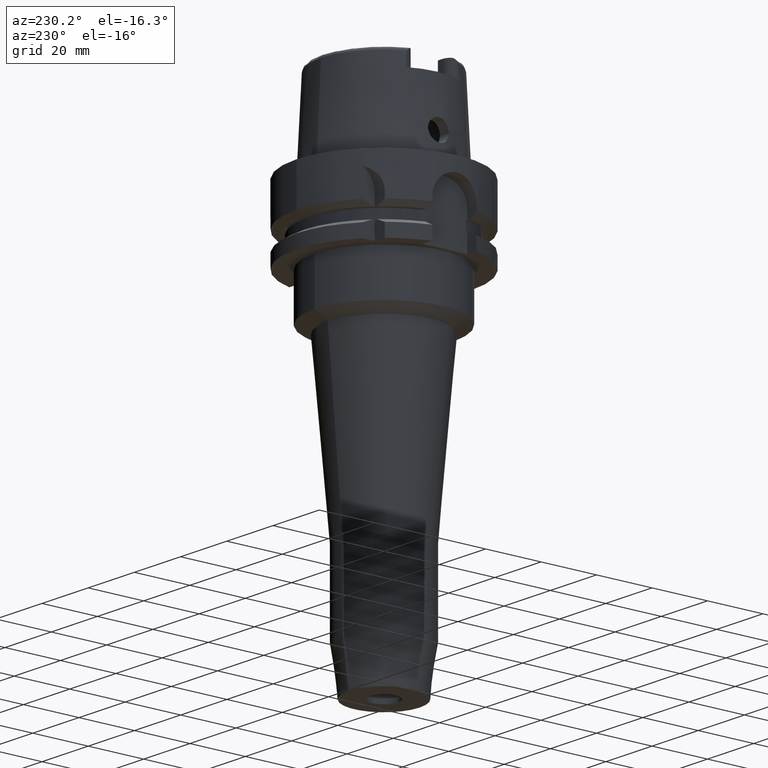
[diagram: clean part render]
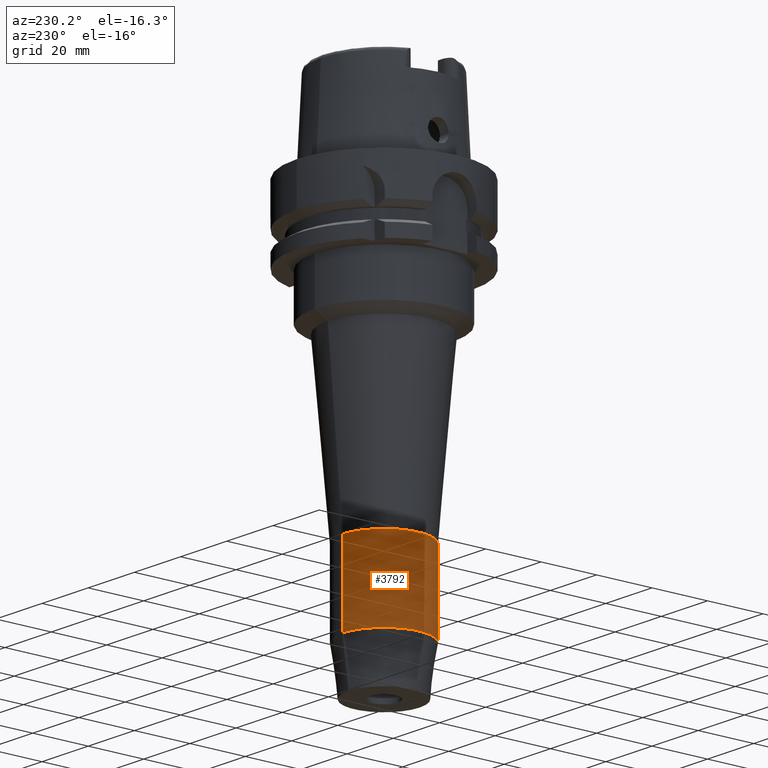
[diagram: same view with one face highlighted and labeled with its STEP entity id]
A machine part, auxiliary view. The second image highlights one B-rep face of the part: STEP entity #3792.
In plain terms, the highlighted cylindrical surface (partial cylindrical patch) has radius 15 mm, axis along (0, 0, 1).
Its self-contained STEP definition (entity closure, byte-faithful):
#1668=CARTESIAN_POINT('',(0.E0,0.E0,-1.05087E2));
#1669=DIRECTION('',(0.E0,0.E0,-1.E0));
#1670=DIRECTION('',(0.E0,-1.E0,0.E0));
#1671=AXIS2_PLACEMENT_3D('',#1668,#1669,#1670);
#1699=DIRECTION('',(0.E0,7.087271059887E-14,-1.E0));
#1700=VECTOR('',#1699,2.854794776410E1);
#1701=CARTESIAN_POINT('',(0.E0,1.5E1,-1.05087E2));
#1702=LINE('',#1701,#1700);
#1706=DIRECTION('',(0.E0,-7.087271059887E-14,-1.E0));
#1707=VECTOR('',#1706,2.854794776410E1);
#1708=CARTESIAN_POINT('',(0.E0,-1.5E1,-1.05087E2));
#1709=LINE('',#1708,#1707);
#1713=CARTESIAN_POINT('',(0.E0,0.E0,-1.336349477641E2));
#1714=DIRECTION('',(0.E0,0.E0,1.E0));
#1715=DIRECTION('',(0.E0,1.E0,0.E0));
#1716=AXIS2_PLACEMENT_3D('',#1713,#1714,#1715);
#2464=CARTESIAN_POINT('',(0.E0,1.5E1,-1.336349477641E2));
#2465=VERTEX_POINT('',#2464);
#2466=CARTESIAN_POINT('',(0.E0,-1.5E1,-1.336349477641E2));
#2467=VERTEX_POINT('',#2466);
#2468=CARTESIAN_POINT('',(0.E0,1.5E1,-1.05087E2));
#2469=VERTEX_POINT('',#2468);
#2470=CARTESIAN_POINT('',(0.E0,-1.5E1,-1.05087E2));
#2471=VERTEX_POINT('',#2470);
#3780=CARTESIAN_POINT('',(0.E0,0.E0,-1.591E2));
#3781=DIRECTION('',(0.E0,0.E0,1.E0));
#3782=DIRECTION('',(0.E0,1.E0,0.E0));
#3783=AXIS2_PLACEMENT_3D('',#3780,#3781,#3782);
#3784=CYLINDRICAL_SURFACE('',#3783,1.5E1);
#3785=ORIENTED_EDGE('',*,*,#3770,.F.);
#3786=ORIENTED_EDGE('',*,*,#3747,.F.);
#3787=ORIENTED_EDGE('',*,*,#3774,.T.);
#3789=ORIENTED_EDGE('',*,*,#3788,.F.);
#3790=EDGE_LOOP('',(#3785,#3786,#3787,#3789));
#3791=FACE_OUTER_BOUND('',#3790,.F.);
#1672=CIRCLE('',#1671,1.5E1);
#1717=CIRCLE('',#1716,1.500000000001E1);
#3747=EDGE_CURVE('',#2471,#2469,#1672,.T.);
#3770=EDGE_CURVE('',#2469,#2465,#1702,.T.);
#3774=EDGE_CURVE('',#2471,#2467,#1709,.T.);
#3788=EDGE_CURVE('',#2465,#2467,#1717,.T.);
#3792=ADVANCED_FACE('',(#3791),#3784,.T.);